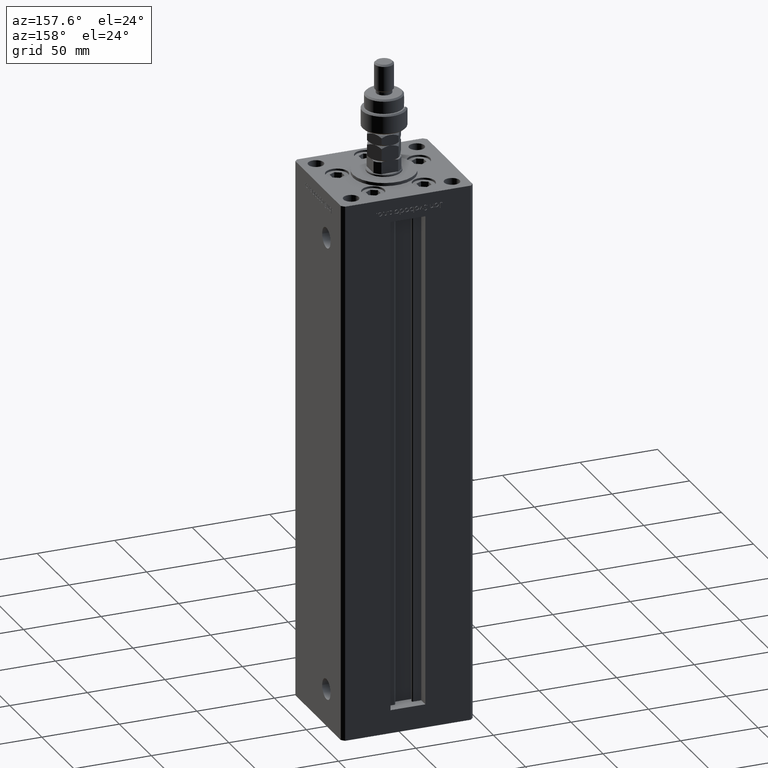
[diagram: clean part render]
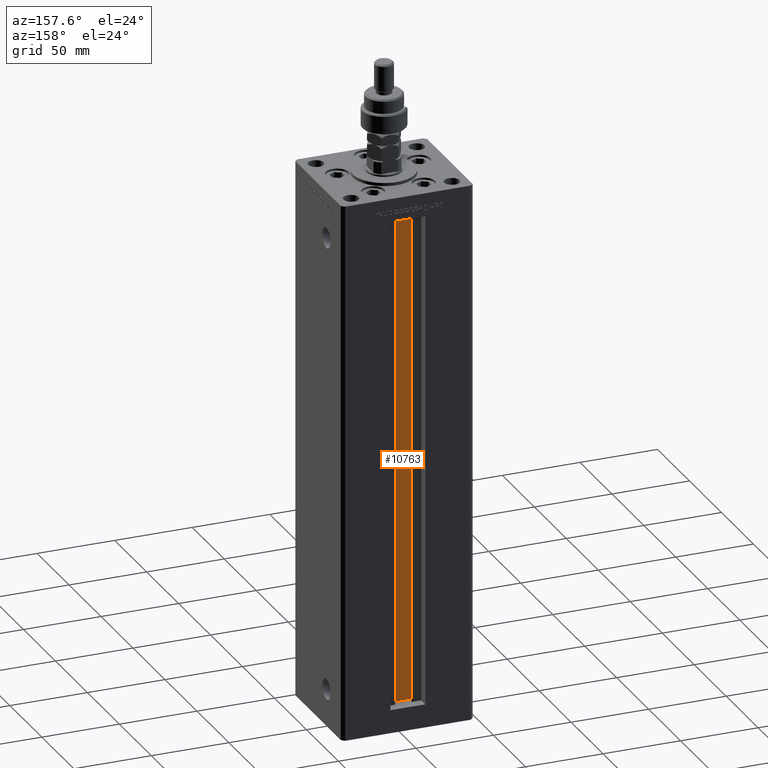
[diagram: same view with one face highlighted and labeled with its STEP entity id]
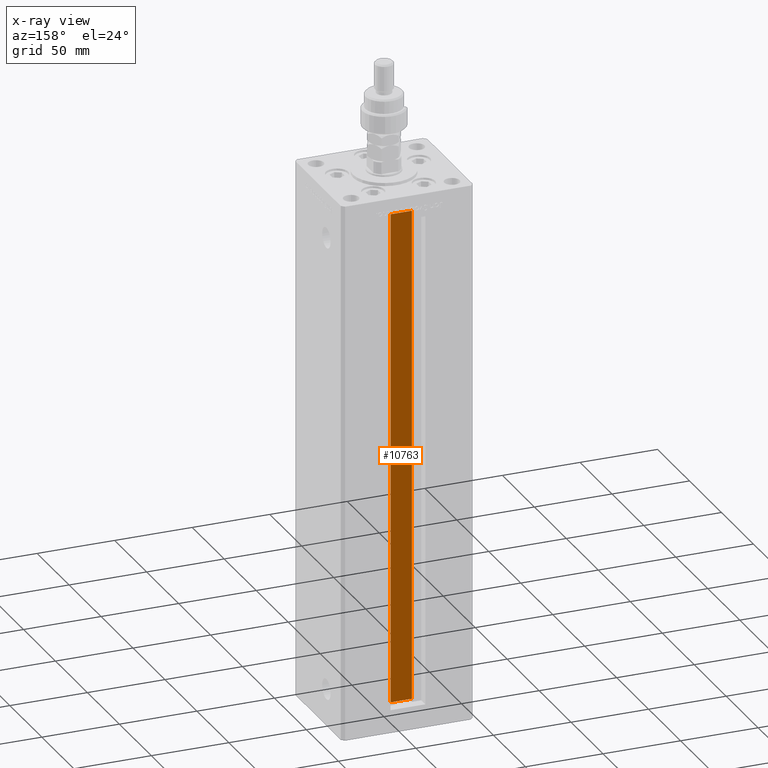
[diagram: x-ray of the same camera — body ghosted, the highlighted face saturated]
A machine part, auxiliary view. The second image highlights one B-rep face of the part: STEP entity #10763.
The next image is the same camera in x-ray: the body ghosted, the highlighted face saturated — about 0% of this face is hidden behind the body in this view.
In plain terms, the highlighted planar face has unit normal (0, -1, 0).
Its self-contained STEP definition (entity closure, byte-faithful):
#1817 = CARTESIAN_POINT ( 'NONE',  ( -6.876153656360465938, 26.99999999999986855, 318.5000000000000000 ) ) ;
#4481 = VECTOR ( 'NONE', #49278, 1000.000000000000000 ) ;
#7226 = FACE_OUTER_BOUND ( 'NONE', #8206, .T. ) ;
#7806 = EDGE_CURVE ( 'NONE', #14687, #39756, #16727, .T. ) ;
#8206 = EDGE_LOOP ( 'NONE', ( #30266, #47110, #39127, #25633 ) ) ;
#10763 = ADVANCED_FACE ( 'NONE', ( #7226 ), #24177, .F. ) ;
#12545 = CARTESIAN_POINT ( 'NONE',  ( 6.876153656360465938, 26.99999999999986855, 0.000000000000000000 ) ) ;
#14413 = VECTOR ( 'NONE', #34244, 1000.000000000000000 ) ;
#14687 = VERTEX_POINT ( 'NONE', #43071 ) ;
#15441 = DIRECTION ( 'NONE',  ( 1.000000000000000000, -0.000000000000000000, -0.000000000000000000 ) ) ;
#16727 = LINE ( 'NONE', #34513, #14413 ) ;
#17911 = EDGE_CURVE ( 'NONE', #19926, #39756, #37031, .T. ) ;
#18981 = VECTOR ( 'NONE', #15441, 1000.000000000000000 ) ;
#19926 = VERTEX_POINT ( 'NONE', #35512 ) ;
#24177 = PLANE ( 'NONE',  #49053 ) ;
#25123 = CARTESIAN_POINT ( 'NONE',  ( 6.876153656360465938, 26.99999999999986855, 0.000000000000000000 ) ) ;
#25633 = ORIENTED_EDGE ( 'NONE', *, *, #7806, .F. ) ;
#28833 = EDGE_CURVE ( 'NONE', #43749, #14687, #33180, .T. ) ;
#30266 = ORIENTED_EDGE ( 'NONE', *, *, #28833, .F. ) ;
#31379 = EDGE_CURVE ( 'NONE', #19926, #43749, #40768, .T. ) ;
#32234 = DIRECTION ( 'NONE',  ( 0.000000000000000000, 0.000000000000000000, -1.000000000000000000 ) ) ;
#33180 = LINE ( 'NONE', #25123, #49080 ) ;
#34244 = DIRECTION ( 'NONE',  ( -1.000000000000000000, 0.000000000000000000, 0.000000000000000000 ) ) ;
#34513 = CARTESIAN_POINT ( 'NONE',  ( 0.000000000000000000, 26.99999999999986855, 318.5000000000000000 ) ) ;
#35512 = CARTESIAN_POINT ( 'NONE',  ( -6.876153656360465938, 26.99999999999986855, 0.000000000000000000 ) ) ;
#36747 = CARTESIAN_POINT ( 'NONE',  ( -6.876153656360465938, 26.99999999999986855, 0.000000000000000000 ) ) ;
#37031 = LINE ( 'NONE', #36747, #4481 ) ;
#37922 = DIRECTION ( 'NONE',  ( -0.000000000000000000, -0.000000000000000000, 1.000000000000000000 ) ) ;
#39127 = ORIENTED_EDGE ( 'NONE', *, *, #17911, .T. ) ;
#39756 = VERTEX_POINT ( 'NONE', #1817 ) ;
#40768 = LINE ( 'NONE', #53017, #18981 ) ;
#41698 = DIRECTION ( 'NONE',  ( 0.000000000000000000, -1.000000000000000000, -0.000000000000000000 ) ) ;
#43071 = CARTESIAN_POINT ( 'NONE',  ( 6.876153656360465938, 26.99999999999986855, 318.5000000000000000 ) ) ;
#43749 = VERTEX_POINT ( 'NONE', #12545 ) ;
#47110 = ORIENTED_EDGE ( 'NONE', *, *, #31379, .F. ) ;
#49053 = AXIS2_PLACEMENT_3D ( 'NONE', #49505, #41698, #32234 ) ;
#49080 = VECTOR ( 'NONE', #37922, 1000.000000000000000 ) ;
#49278 = DIRECTION ( 'NONE',  ( -0.000000000000000000, -0.000000000000000000, 1.000000000000000000 ) ) ;
#49505 = CARTESIAN_POINT ( 'NONE',  ( 6.876153656360465938, 26.99999999999986855, 0.000000000000000000 ) ) ;
#53017 = CARTESIAN_POINT ( 'NONE',  ( 6.876153656360465938, 26.99999999999986855, 0.000000000000000000 ) ) ;